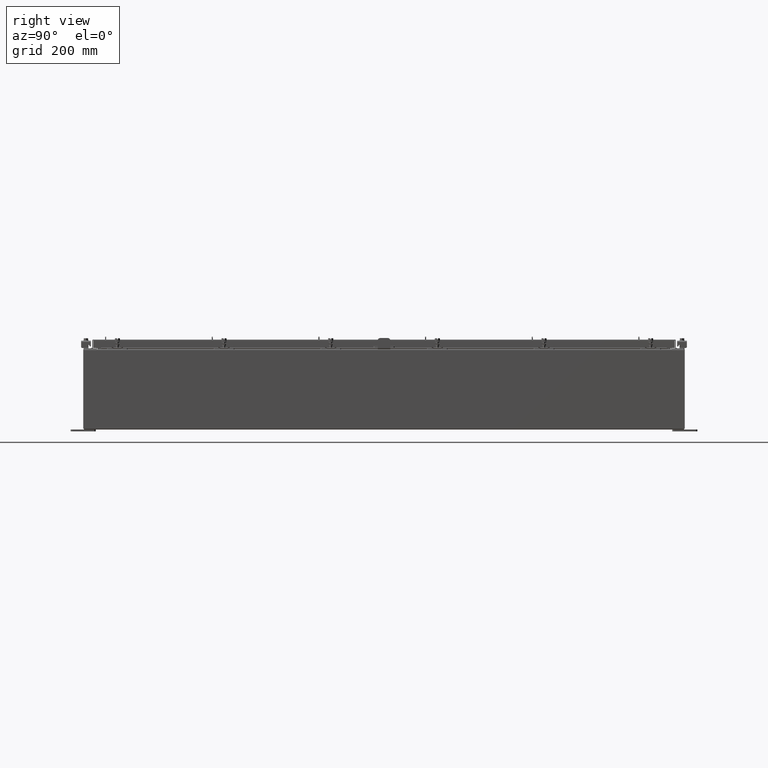
[diagram: clean part render]
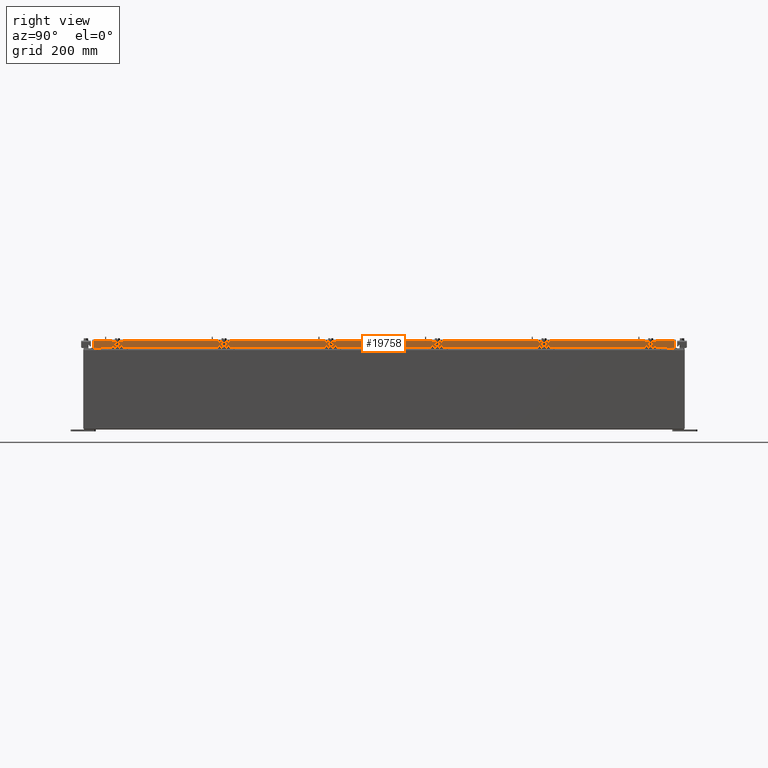
[diagram: same view with one face highlighted and labeled with its STEP entity id]
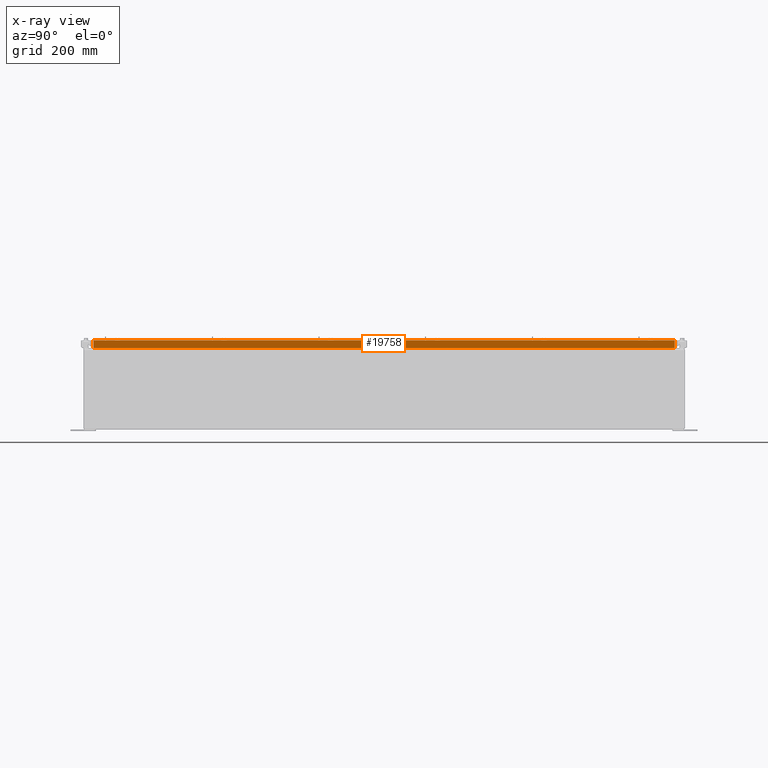
[diagram: x-ray of the same camera — body ghosted, the highlighted face saturated]
A machine part, right view. The second image highlights one B-rep face of the part: STEP entity #19758.
The next image is the same camera in x-ray: the body ghosted, the highlighted face saturated — about 0% of this face is hidden behind the body in this view.
In plain terms, the highlighted planar face has unit normal (1, 0, 0).
Its self-contained STEP definition (entity closure, byte-faithful):
#392 = CARTESIAN_POINT ( 'NONE',  ( 17.07800000000000700, -29.00515786437626500, -0.8499999999999996400 ) ) ;
#1293 = VECTOR ( 'NONE', #22378, 39.37007874015748100 ) ;
#2055 = DIRECTION ( 'NONE',  ( 0.0000000000000000000, -1.000000000000000000, 0.0000000000000000000 ) ) ;
#3187 = LINE ( 'NONE', #23813, #13917 ) ;
#4423 = ORIENTED_EDGE ( 'NONE', *, *, #9436, .F. ) ;
#4691 = VECTOR ( 'NONE', #23722, 39.37007874015748100 ) ;
#4916 = VECTOR ( 'NONE', #5579, 39.37007874015748100 ) ;
#5008 = EDGE_CURVE ( 'NONE', #23844, #21861, #16080, .T. ) ;
#5066 = CARTESIAN_POINT ( 'NONE',  ( 17.07800000000000300, -29.00515786437627200, -0.08770000000000007000 ) ) ;
#5374 = ORIENTED_EDGE ( 'NONE', *, *, #8186, .F. ) ;
#5475 = CARTESIAN_POINT ( 'NONE',  ( 17.07800000000000300, -29.00515786437627200, -0.07469999999999978000 ) ) ;
#5499 = ORIENTED_EDGE ( 'NONE', *, *, #5008, .T. ) ;
#5579 = DIRECTION ( 'NONE',  ( -2.818880942772360100E-015, -6.982962677686265900E-015, 1.000000000000000000 ) ) ;
#5873 = VECTOR ( 'NONE', #15282, 39.37007874015748100 ) ;
#6538 = LINE ( 'NONE', #11154, #5873 ) ;
#7363 = CARTESIAN_POINT ( 'NONE',  ( 17.07800000000000700, -29.09400000000000500, -0.8499999999999996400 ) ) ;
#8186 = EDGE_CURVE ( 'NONE', #14498, #15617, #10624, .T. ) ;
#8902 = DIRECTION ( 'NONE',  ( 0.0000000000000000000, -1.000000000000000000, 0.0000000000000000000 ) ) ;
#9436 = EDGE_CURVE ( 'NONE', #20858, #11851, #6538, .T. ) ;
#10153 = DIRECTION ( 'NONE',  ( 1.000000000000000000, 0.0000000000000000000, 2.818880942772360100E-015 ) ) ;
#10273 = FACE_OUTER_BOUND ( 'NONE', #12303, .T. ) ;
#10624 = LINE ( 'NONE', #5475, #4916 ) ;
#11154 = CARTESIAN_POINT ( 'NONE',  ( 17.07799999999998500, 28.25515786437626500, -0.8500000000000016400 ) ) ;
#11851 = VERTEX_POINT ( 'NONE', #18168 ) ;
#12303 = EDGE_LOOP ( 'NONE', ( #5374, #17818, #4423, #16517, #5499, #24565 ) ) ;
#12956 = VECTOR ( 'NONE', #2055, 39.37007874015748100 ) ;
#13308 = EDGE_CURVE ( 'NONE', #23844, #20858, #18304, .T. ) ;
#13917 = VECTOR ( 'NONE', #8902, 39.37007874015748100 ) ;
#14289 = CARTESIAN_POINT ( 'NONE',  ( 17.07800000000000300, 0.0000000000000000000, 4.840166239667796000E-014 ) ) ;
#14498 = VERTEX_POINT ( 'NONE', #392 ) ;
#15282 = DIRECTION ( 'NONE',  ( 0.0000000000000000000, -1.000000000000000000, 0.0000000000000000000 ) ) ;
#15617 = VERTEX_POINT ( 'NONE', #5066 ) ;
#16080 = LINE ( 'NONE', #17399, #4691 ) ;
#16517 = ORIENTED_EDGE ( 'NONE', *, *, #13308, .F. ) ;
#17399 = CARTESIAN_POINT ( 'NONE',  ( 17.07800000000000300, 29.00515786437626500, 2.509435972240157400E-013 ) ) ;
#17818 = ORIENTED_EDGE ( 'NONE', *, *, #25893, .F. ) ;
#18168 = CARTESIAN_POINT ( 'NONE',  ( 17.07799999999998500, -28.25515786437626500, -0.8500000000000016400 ) ) ;
#18304 = LINE ( 'NONE', #7363, #1293 ) ;
#18565 = PLANE ( 'NONE',  #24459 ) ;
#18771 = CARTESIAN_POINT ( 'NONE',  ( 17.07800000000000300, 29.00515786437626500, -0.08770000000000007000 ) ) ;
#19758 = ADVANCED_FACE ( 'NONE', ( #10273 ), #18565, .T. ) ;
#20793 = CARTESIAN_POINT ( 'NONE',  ( 17.07800000000000700, 29.00515786437627200, -0.8499999999999996400 ) ) ;
#20858 = VERTEX_POINT ( 'NONE', #24442 ) ;
#21861 = VERTEX_POINT ( 'NONE', #18771 ) ;
#22378 = DIRECTION ( 'NONE',  ( 0.0000000000000000000, -1.000000000000000000, 0.0000000000000000000 ) ) ;
#23412 = CARTESIAN_POINT ( 'NONE',  ( 17.07800000000000300, 0.0000000000000000000, -0.08770000000000007000 ) ) ;
#23722 = DIRECTION ( 'NONE',  ( -2.818880942772360100E-015, -6.982962677686265900E-015, 1.000000000000000000 ) ) ;
#23813 = CARTESIAN_POINT ( 'NONE',  ( 17.07800000000000700, -29.09400000000000500, -0.8499999999999996400 ) ) ;
#23844 = VERTEX_POINT ( 'NONE', #20793 ) ;
#24442 = CARTESIAN_POINT ( 'NONE',  ( 17.07799999999998500, 28.25515786437626500, -0.8500000000000016400 ) ) ;
#24459 = AXIS2_PLACEMENT_3D ( 'NONE', #14289, #10153, #25066 ) ;
#24475 = EDGE_CURVE ( 'NONE', #21861, #15617, #24961, .T. ) ;
#24565 = ORIENTED_EDGE ( 'NONE', *, *, #24475, .T. ) ;
#24961 = LINE ( 'NONE', #23412, #12956 ) ;
#25066 = DIRECTION ( 'NONE',  ( 2.818880942772360100E-015, 0.0000000000000000000, -1.000000000000000000 ) ) ;
#25893 = EDGE_CURVE ( 'NONE', #11851, #14498, #3187, .T. ) ;